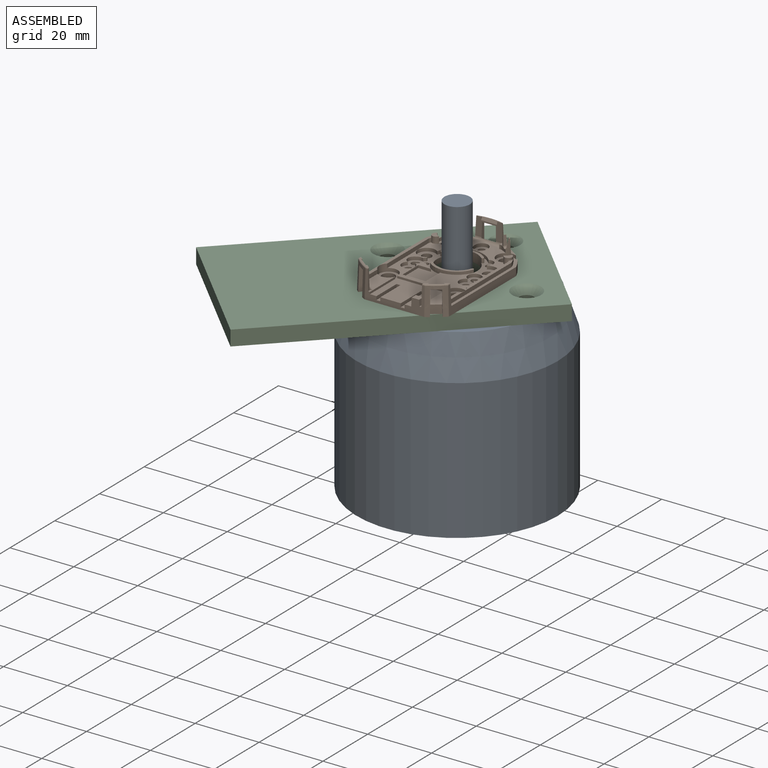
[diagram: assembled view]
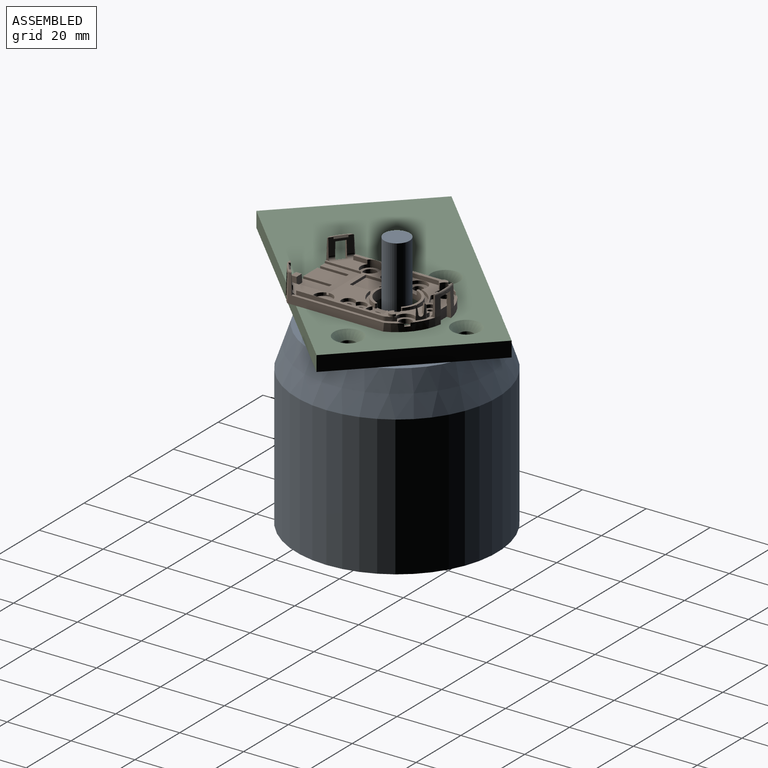
[diagram: assembled view, second angle]
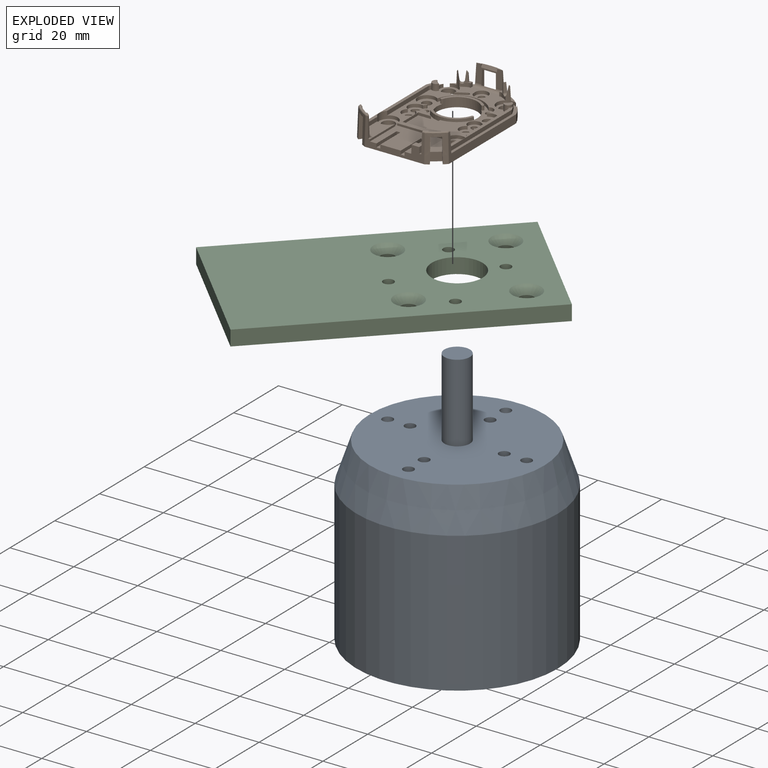
[diagram: exploded view]
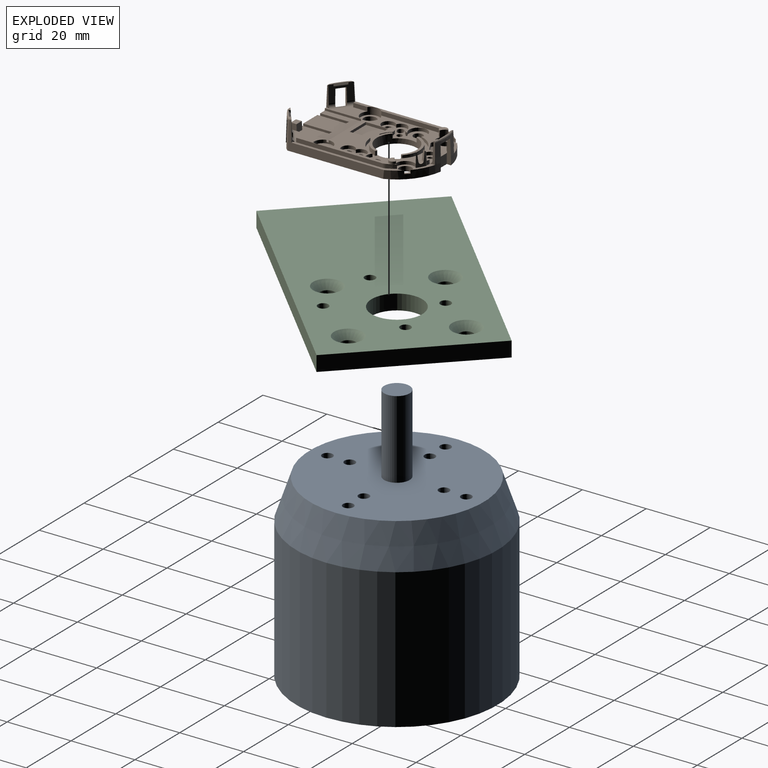
[diagram: exploded view, second angle]
ASSEMBLY  parts=3 mates=2
PART A: 33 faces, bbox 63x63x90 mm
  f0: plane 18x18mm, normal (0,0,-1), area 254.5mm2, adj f1
  f1: cylinder r=9mm len=18mm, axis (0,0,-1), area 113.1mm2, adj f0,f2
  f2: plane 30.5x30.5mm, normal (0,0,-1), area 456.5mm2, adj f1,f3,f25,f27,f29,f31
  f3: cone r=15.25mm half-angle=66.1deg, axis (0,0,1), area 2610.4mm2, adj f2,f4
  f4: cylinder r=31.5mm len=63mm, axis (0,0,-1), area 8668.9mm2, adj f3,f5
  f5: cone r=27.25mm half-angle=18.8deg, axis (0,0,-1), area 2436.8mm2, adj f4,f6
  f6: plane 54.5x54.5mm, normal (0,0,1), area 2214.1mm2, adj f5,f7,f9,f11,f13,f15,f17,f19
  f7: cylinder r=4mm len=24.5mm, axis (0,0,-1), area 615.8mm2, adj f6,f8
  f8: plane 8x8mm, normal (0,0,1), area 50.3mm2, adj f7
  f9: cylinder r=1.65mm len=14.1mm, axis (0,0,1), area 146.2mm2, adj f6,f10
  f10: cone r=0mm half-angle=59deg, axis (0,0,1), area 10mm2, adj f9
  f11: cylinder r=1.65mm len=14.1mm, axis (0,0,1), area 146.2mm2, adj f6,f12
  f12: cone r=0mm half-angle=59deg, axis (0,0,1), area 10mm2, adj f11
  f13: cylinder r=1.65mm len=14.1mm, axis (0,0,1), area 146.2mm2, adj f6,f14
  f14: cone r=0mm half-angle=59deg, axis (0,0,1), area 10mm2, adj f13
  f15: cylinder r=1.65mm len=14.1mm, axis (0,0,1), area 146.2mm2, adj f6,f16
  f16: cone r=0mm half-angle=59deg, axis (0,0,1), area 10mm2, adj f15
  f17: cylinder r=1.65mm len=14.1mm, axis (0,0,1), area 146.2mm2, adj f6,f18
  f18: cone r=0mm half-angle=59deg, axis (0,0,1), area 10mm2, adj f17
  f19: cylinder r=1.65mm len=14.1mm, axis (0,0,1), area 146.2mm2, adj f6,f20
  f20: cone r=0mm half-angle=59deg, axis (0,0,1), area 10mm2, adj f19
  f21: cylinder r=1.65mm len=14.1mm, axis (0,0,1), area 146.2mm2, adj f6,f22
  f22: cone r=0mm half-angle=59deg, axis (0,0,1), area 10mm2, adj f21
  f23: cylinder r=1.65mm len=14.1mm, axis (0,0,1), area 146.2mm2, adj f6,f24
  f24: cone r=0mm half-angle=59deg, axis (0,0,1), area 10mm2, adj f23
  f25: cylinder r=1.25mm len=13.5mm, axis (0,0,-1), area 106mm2, adj f2,f26
  f26: cone r=0mm half-angle=59deg, axis (0,0,-1), area 5.7mm2, adj f25
  f27: cylinder r=1.25mm len=13.5mm, axis (0,0,-1), area 106mm2, adj f2,f28
  f28: cone r=0mm half-angle=59deg, axis (0,0,-1), area 5.7mm2, adj f27
  f29: cylinder r=1.25mm len=13.5mm, axis (0,0,-1), area 106mm2, adj f2,f30
  f30: cone r=0mm half-angle=59deg, axis (0,0,-1), area 5.7mm2, adj f29
  f31: cylinder r=1.25mm len=13.5mm, axis (0,0,-1), area 106mm2, adj f2,f32
  f32: cone r=0mm half-angle=59deg, axis (0,0,-1), area 5.7mm2, adj f31
PART B: 245 faces, bbox 28.9x44.7x9.1 mm
  f0: plane 30.9x24.8mm, normal (0,0,-1), area 240.8mm2, adj f9,f14,f16,f20,f22,f23,f24,f25
  f1: plane 38.33x6.58mm, normal (0,0,-1), area 61.6mm2, adj f13,f62,f65,f70,f76,f77,f85,f96
  f2: cylinder r=7.1mm len=11.5mm, axis (0,0,1), area 5.3mm2, adj f6,f7,f220,f235
  f3: cylinder r=7.1mm len=11.5mm, axis (0,0,1), area 5.3mm2, adj f5,f8,f225,f234
  f4: cylinder r=6.3mm len=12.6mm, axis (0,0,-1), area 93.7mm2, adj f5,f6,f7,f8,f80,f163,f234,f235
  f5: cylinder r=0.4mm len=1.38mm, axis (0,0,-1), area 1.1mm2, adj f3,f4,f163,f229,f230,f234
  f6: cylinder r=0.4mm len=1.38mm, axis (0,0,-1), area 1.1mm2, adj f2,f4,f163,f228,f231,f235
  f7: cylinder r=0.4mm len=1.38mm, axis (0,0,-1), area 1.1mm2, adj f2,f4,f163,f226,f232,f235
  f8: cylinder r=0.4mm len=1.38mm, axis (0,0,-1), area 1.1mm2, adj f3,f4,f163,f227,f233,f234
  f9: cylinder r=1.6mm len=1mm, axis (0,0,-1), area 1mm2, adj f0,f20,f163,f223
  f10: plane 15.44x11.98mm, normal (0,0,-1), area 158.3mm2, adj f76,f77,f78,f79,f87,f88,f89,f91
  f11: plane 38.33x6.58mm, normal (0,0,-1), area 61.6mm2, adj f15,f46,f63,f66,f71,f76,f78,f83
  f12: plane 30.61x1.74mm, normal (0,0,-1), area 25.9mm2, adj f13,f14,f43,f96,f97,f104,f105,f106
  f13: cylinder r=14.4mm len=2.61mm, axis (0,0,-1), area 3.7mm2, adj f1,f12,f97,f215,f238
  f14: cylinder r=13.4mm len=1.27mm, axis (0,0,-1), area 0.6mm2, adj f0,f12,f104,f214
  f15: cylinder r=14.4mm len=2.61mm, axis (0,0,-1), area 3.7mm2, adj f11,f17,f94,f212,f237
  f16: cylinder r=13.4mm len=1.27mm, axis (0,0,-1), area 0.6mm2, adj f0,f17,f101,f211
  f17: plane 30.61x1.74mm, normal (0,0,-1), area 25.9mm2, adj f15,f16,f46,f94,f95,f98,f99,f100
  f18: cylinder r=0.85mm len=1.7mm, axis (0,0,-1), area 8mm2, adj f80,f163
  f19: cylinder r=0.85mm len=1.7mm, axis (0,0,-1), area 8mm2, adj f80,f163
  f20: cylinder r=2.02mm len=1.92mm, axis (0,0,-1), area 2mm2, adj f0,f9,f163,f172
  f21: plane 1.59x1.45mm, normal (0,0,-1), area 0.9mm2, adj f22,f25,f27,f31,f72,f74,f103,f119
  f22: cylinder r=13.4mm len=1.95mm, axis (0,0,-1), area 2.1mm2, adj f0,f21,f103,f189,f190,f205,f238
  f23: cone r=14.66mm half-angle=3deg, axis (0,0,1), area 5.1mm2, adj f0,f24,f25,f203,f204,f205,f206,f207
  f24: plane 4.15x0.19mm, normal (-0.63,0.78,-0.05), area 0.1mm2, adj f0,f23,f26,f207
  f25: cone r=0.64mm half-angle=3deg, axis (0,0,1), area 4.8mm2, adj f0,f21,f23,f27,f31,f203
  f26: cone r=0.64mm half-angle=3deg, axis (0,0,1), area 0.6mm2, adj f0,f24,f207,f238
  f27: cone r=13.39mm half-angle=3deg, axis (0,0,-1), area 0.9mm2, adj f21,f25,f203,f204,f205
  f28: plane 1.59x1.45mm, normal (0,0,-1), area 0.9mm2, adj f29,f30,f73,f75,f102,f120,f194,f195
  f29: cylinder r=2mm len=1.27mm, axis (0,0,-1), area 0.9mm2, adj f0,f28,f73,f195
  f30: cylinder r=13.4mm len=1.95mm, axis (0,0,-1), area 2.1mm2, adj f0,f28,f102,f191,f192,f198,f236
  f31: cylinder r=2mm len=1.27mm, axis (0,0,-1), area 0.9mm2, adj f0,f21,f25,f72
  f32: sphere r=0.4mm, area 0.1mm2, adj f33,f34,f51
  f33: cylinder r=0.4mm len=8.62mm, axis (-0.03,-0.01,1), area 2.6mm2, adj f32,f80,f81,f85,f108,f109
  f34: cylinder r=0.4mm len=0.74mm, axis (0,-1,0), area 0.4mm2, adj f32,f85,f110,f111,f127
  f35: plane 0.45x0.01mm, normal (0.8,-0.6,0), area 0mm2, adj f69,f110,f122
  f36: plane 0.45x0.01mm, normal (0.8,0.6,0), area 0mm2, adj f57,f117,f123
  f37: plane 0.45x0.01mm, normal (-0.8,0.6,0), area 0mm2, adj f59,f110,f122
  f38: cylinder r=1.05mm len=2.1mm, axis (0,0,-1), area 9.9mm2, adj f80,f163
  f39: cylinder r=1.05mm len=2.1mm, axis (0,0,-1), area 9.9mm2, adj f80,f166
  f40: cylinder r=1mm len=1.97mm, axis (0,0,-1), area 5.5mm2, adj f41,f80,f163
  f41: cylinder r=1mm len=1.98mm, axis (0,0,-1), area 5.6mm2, adj f40,f80,f163
  f42: cylinder r=1.47mm len=2.95mm, axis (0,0,-1), area 13.9mm2, adj f80,f163
  f43: plane 18.46x1.27mm, normal (1,0,0), area 23.4mm2, adj f0,f12,f104,f239
  f44: cylinder r=1mm len=1.97mm, axis (0,0,-1), area 5.5mm2, adj f45,f80,f166
  f45: cylinder r=1mm len=1.98mm, axis (0,0,-1), area 5.6mm2, adj f44,f80,f166
  f46: plane 4.43x1.27mm, normal (-1,0,0), area 5.6mm2, adj f11,f17,f99,f240
  f47: cylinder r=1.47mm len=2.95mm, axis (0,0,-1), area 13.9mm2, adj f80,f163
  f48: cylinder r=1mm len=2mm, axis (0,0,-1), area 5.5mm2, adj f49,f80,f160
  f49: cylinder r=1mm len=2.01mm, axis (0,0,-1), area 5.6mm2, adj f48,f80,f160
  f50: sphere r=0.4mm, area 0.1mm2, adj f51,f52,f152
  f51: torus R=18.04mm, axis (0,0,1), area 3.5mm2, adj f32,f50,f53,f54,f109,f111,f143,f144
  f52: cylinder r=0.4mm len=8.61mm, axis (0.01,0.03,-1), area 1.6mm2, adj f50,f60,f61,f76,f80,f109
  f53: plane 1.4x0.83mm, normal (0,0,-1), area 0.5mm2, adj f51,f110,f144,f152
  f54: plane 2.15x1.62mm, normal (0,0,-1), area 0.1mm2, adj f51,f143
  f55: plane 1.34x0.29mm, normal (0,0,-1), area 0.2mm2, adj f113,f134,f149
  f56: plane 2.59x0.06mm, normal (0,0,-1), area 0.1mm2, adj f132,f149
  f57: plane 1.4x1.06mm, normal (-0.6,0.8,0), area 0.5mm2, adj f36,f117,f123,f140
  f58: cone r=19.87mm half-angle=2deg, axis (0,0,1), area 3.4mm2, adj f80,f116,f140,f153
  f59: plane 1.4x1.06mm, normal (0.6,0.8,0), area 0.5mm2, adj f37,f110,f122,f136
  f60: cone r=19.87mm half-angle=2deg, axis (0,0,1), area 3.4mm2, adj f52,f61,f80,f136
  f61: plane 1.19x0.69mm, normal (0,0,1), area 0mm2, adj f52,f60,f109,f136
  f62: cylinder r=15.5mm len=12.14mm, axis (0,0,-1), area 38.5mm2, adj f0,f1,f80,f84,f85,f129,f184,f238
  f63: cylinder r=15.5mm len=12.14mm, axis (0,0,-1), area 38.5mm2, adj f0,f11,f80,f83,f84,f131,f183,f236
  f64: plane 2.01x0.27mm, normal (0,-1,0), area 0.5mm2, adj f113,f114,f121,f129
  f65: plane 0.82x0.79mm, normal (0.8,-0.6,0), area 0.2mm2, adj f1,f110,f122
  f66: plane 0.63x0.48mm, normal (0.8,0.6,0), area 0.1mm2, adj f11,f123,f124
  f67: plane 2.01x0.27mm, normal (0,-1,0), area 0.5mm2, adj f112,f113,f121,f131
  f68: plane 1.58x1.2mm, normal (-0.6,0.8,0), area 0.5mm2, adj f117,f123,f124,f141
  f69: plane 1.4x1.06mm, normal (0.6,0.8,0), area 0.5mm2, adj f35,f110,f122,f138
  f70: plane 0.63x0.48mm, normal (-0.8,0.6,0), area 0.1mm2, adj f1,f122,f127
  f71: plane 0.82x0.79mm, normal (-0.8,-0.6,0), area 0.2mm2, adj f11,f117,f123
  f72: plane 1.27x0.38mm, normal (0,1,0), area 0.5mm2, adj f0,f21,f31,f119
  f73: plane 1.27x0.38mm, normal (0,1,0), area 0.5mm2, adj f0,f28,f29,f120
  f74: plane 1.27x0.38mm, normal (0,-1,0), area 0.5mm2, adj f0,f21,f103,f119
  f75: plane 1.27x0.38mm, normal (0,-1,0), area 0.5mm2, adj f0,f28,f102,f120
  f76: plane 18.52x8.61mm, normal (0,-1,-0.03), area 49.8mm2, adj f1,f10,f11,f52,f77,f78,f80,f86
  f77: plane 11.35x0.64mm, normal (1,0,0), area 7.3mm2, adj f1,f10,f76,f216,f239
  f78: plane 11.35x0.64mm, normal (-1,0,0), area 7.3mm2, adj f10,f11,f76,f240
  f79: plane 15.19x0.64mm, normal (0,-1,0), area 9.7mm2, adj f0,f10,f239,f240
  f80: plane 43.38x28.78mm, normal (0,0,1), area 927.7mm2, adj f4,f18,f19,f33,f38,f39,f40,f41
  f81: cone r=19.87mm half-angle=2deg, axis (0,0,1), area 3.7mm2, adj f33,f80,f108,f138
  f82: cone r=19.87mm half-angle=2deg, axis (0,0,1), area 3.6mm2, adj f80,f116,f141,f159
  f83: plane 30.07x8.62mm, normal (1,0,-0.03), area 80.3mm2, adj f11,f63,f80,f124,f150,f158,f159
  f84: cone r=15.5mm half-angle=2deg, axis (0,0,1), area 27.8mm2, adj f62,f63,f112,f114,f128,f129,f131,f149
  f85: plane 30.07x8.62mm, normal (-1,0,-0.03), area 80.4mm2, adj f1,f33,f34,f62,f80,f127
  f86: plane 9.02x1.2mm, normal (0,0,-1), area 10.8mm2, adj f76,f87,f88,f89
  f87: plane 9.02x1.1mm, normal (1,0,0), area 9.9mm2, adj f10,f76,f86,f89
  f88: plane 9.02x1.1mm, normal (-1,0,0), area 9.9mm2, adj f10,f76,f86,f89
  f89: plane 1.2x1.1mm, normal (0,-1,0), area 1.3mm2, adj f10,f86,f87,f88
  f90: plane 9.02x1.2mm, normal (0,0,-1), area 10.8mm2, adj f76,f91,f92,f93
  f91: plane 9.02x1.1mm, normal (1,0,0), area 9.9mm2, adj f10,f76,f90,f93
  f92: plane 9.02x1.1mm, normal (-1,0,0), area 9.9mm2, adj f10,f76,f90,f93
  f93: plane 1.2x1.1mm, normal (0,-1,0), area 1.3mm2, adj f10,f90,f91,f92
  f94: cylinder r=2mm len=1.27mm, axis (0,0,-1), area 1mm2, adj f11,f15,f17,f95
  f95: plane 27.04x1.27mm, normal (1,0,0), area 34.3mm2, adj f11,f17,f94,f98
  f96: plane 27.04x1.27mm, normal (-1,0,0), area 34.3mm2, adj f1,f12,f97,f107
  f97: cylinder r=2mm len=1.27mm, axis (0,0,-1), area 1mm2, adj f1,f12,f13,f96
  f98: plane 1.27x0.23mm, normal (0.62,-0.78,0), area 0.4mm2, adj f11,f17,f95,f99
  f99: plane 1.27x0.77mm, normal (0,-1,0), area 1mm2, adj f11,f17,f46,f98
  f100: plane 18.46x1.27mm, normal (-1,0,0), area 23.4mm2, adj f0,f17,f101,f240
  f101: cylinder r=1mm len=1.27mm, axis (0,0,-1), area 0.5mm2, adj f0,f16,f17,f100
  f102: cylinder r=1mm len=1.27mm, axis (0,0,-1), area 0.5mm2, adj f0,f28,f30,f75
  f103: cylinder r=1mm len=1.27mm, axis (0,0,-1), area 0.5mm2, adj f0,f21,f22,f74
  f104: cylinder r=1mm len=1.27mm, axis (0,0,-1), area 0.5mm2, adj f0,f12,f14,f43
  f105: plane 4.43x1.27mm, normal (1,0,0), area 5.6mm2, adj f1,f12,f106,f239
  f106: plane 1.27x0.77mm, normal (0,-1,0), area 1mm2, adj f1,f12,f105,f107
  f107: plane 1.27x0.23mm, normal (-0.62,-0.78,0), area 0.4mm2, adj f1,f12,f96,f106
  f108: plane 1.06x1.02mm, normal (0,0,1), area 0mm2, adj f33,f81,f109,f138
  f109: cone r=18.65mm half-angle=2deg, axis (0,0,1), area 19.9mm2, adj f33,f51,f52,f61,f108,f135,f136,f138
  f110: plane 6.51x5.62mm, normal (0.6,0.8,-0.03), area 20.1mm2, adj f1,f34,f35,f37,f53,f59,f65,f69
  f111: plane 1.09x0.88mm, normal (0,0,-1), area 0.4mm2, adj f34,f51,f110,f145
  f112: plane 6.53x1.83mm, normal (1,0,-0.04), area 4.4mm2, adj f0,f67,f84,f113,f121,f149
  f113: plane 8.46x5.23mm, normal (0,-1,-0.03), area 21.5mm2, adj f55,f64,f67,f112,f114,f115,f128,f129
  f114: plane 6.53x1.83mm, normal (-1,0,-0.04), area 4.4mm2, adj f0,f64,f84,f113,f121,f149
  f115: plane 1.34x0.29mm, normal (0,0,-1), area 0.2mm2, adj f113,f133,f149
  f116: cone r=19.88mm half-angle=2deg, axis (0,0,1), area 19.9mm2, adj f58,f82,f139,f140,f141,f154,f156,f158
  f117: plane 6.51x5.62mm, normal (-0.6,0.8,-0.03), area 21.7mm2, adj f11,f36,f57,f68,f71,f118,f124,f125
  f118: plane 5.16x3.91mm, normal (0,0,-1), area 2mm2, adj f117,f146,f147,f148,f150,f151,f156
  f119: plane 1.27x1mm, normal (1,0,0), area 1.3mm2, adj f0,f21,f72,f74
  f120: plane 1.27x1mm, normal (-1,0,0), area 1.3mm2, adj f0,f28,f73,f75
  f121: cylinder r=1mm len=8.57mm, axis (-1,0,0), area 11.8mm2, adj f0,f64,f67,f112,f114,f129,f130,f131
  f122: cylinder r=1mm len=5.91mm, axis (0.8,-0.6,0), area 7.5mm2, adj f1,f35,f37,f59,f65,f69,f70,f136
  f123: cylinder r=1mm len=6.1mm, axis (0.8,0.6,0), area 7.6mm2, adj f11,f36,f57,f66,f68,f71,f124,f140
  f124: plane 6.54x0.86mm, normal (0,1,-0.03), area 1.9mm2, adj f11,f66,f68,f83,f117,f123,f150
  f125: plane 6.5x0.76mm, normal (-1,0,-0.02), area 3.5mm2, adj f11,f76,f117,f151
  f126: plane 6.5x0.76mm, normal (1,0,-0.02), area 3.5mm2, adj f1,f76,f110,f152
  f127: plane 6.51x0.83mm, normal (0,1,-0.03), area 1.9mm2, adj f1,f34,f70,f85,f110,f187
  f128: plane 4.32x1.08mm, normal (0,0,1), area 4.5mm2, adj f84,f113,f129,f131
  f129: plane 7.65x1.35mm, normal (1,0,0.02), area 9mm2, adj f62,f64,f80,f84,f113,f121,f128,f130
  f130: plane 4.59x3.15mm, normal (0,1,0.02), area 14.3mm2, adj f80,f121,f129,f131
  f131: plane 7.65x1.35mm, normal (-1,0,0.02), area 9mm2, adj f63,f67,f80,f84,f113,f121,f128,f130
  f132: plane 5.02x0.93mm, normal (0,-0.88,-0.47), area 5.1mm2, adj f56,f113,f133,f134,f149
  f133: plane 0.91x0.47mm, normal (-1,0,0), area 0.2mm2, adj f113,f115,f132,f149
  f134: plane 0.91x0.47mm, normal (1,0,0), area 0.2mm2, adj f55,f113,f132,f149
  f135: plane 3.05x2.65mm, normal (0,0,1), area 3.3mm2, adj f109,f110,f136,f138
  f136: plane 7.65x1.49mm, normal (-0.8,0.6,0.02), area 10.9mm2, adj f59,f60,f61,f80,f109,f110,f122,f135
  f137: plane 2.71x2.62mm, normal (-0.6,-0.8,0.02), area 8.8mm2, adj f80,f122,f136,f138
  f138: plane 7.65x1.5mm, normal (0.8,-0.6,0.02), area 11mm2, adj f69,f80,f81,f108,f109,f110,f122,f135
  f139: plane 3.04x2.64mm, normal (0,0,1), area 3.3mm2, adj f116,f117,f140,f141
  f140: plane 7.65x1.49mm, normal (0.8,0.6,0.02), area 10.9mm2, adj f57,f58,f80,f116,f117,f123,f139,f142
  f141: plane 7.65x1.5mm, normal (-0.8,-0.6,0.02), area 11mm2, adj f68,f80,f82,f116,f117,f123,f139,f142
  f142: plane 2.71x2.62mm, normal (0.6,-0.8,0.02), area 8.8mm2, adj f80,f123,f140,f141
  f143: plane 3.57x2.91mm, normal (0.52,0.69,-0.5), area 4.9mm2, adj f51,f54,f110,f144,f145
  f144: plane 1.07x0.49mm, normal (-0.8,0.6,0), area 0.3mm2, adj f51,f53,f110,f143
  f145: plane 1.07x0.49mm, normal (0.8,-0.6,0), area 0.3mm2, adj f51,f110,f111,f143
  f146: plane 3.39x2.68mm, normal (-0.54,0.71,-0.46), area 2.9mm2, adj f117,f118,f147,f148
  f147: plane 0.64x0.27mm, normal (-0.8,-0.6,0), area 0.1mm2, adj f117,f118,f146
  f148: plane 0.64x0.27mm, normal (0.8,0.6,0), area 0.1mm2, adj f117,f118,f146
  f149: torus R=14.79mm, axis (0,0,-1), area 6mm2, adj f55,f56,f84,f112,f113,f114,f115,f132
  f150: cylinder r=0.4mm len=0.74mm, axis (0,-1,0), area 0.4mm2, adj f83,f117,f118,f124,f157
  f151: cylinder r=0.4mm len=0.74mm, axis (-1,0,0), area 0.4mm2, adj f76,f117,f118,f125,f155
  f152: cylinder r=0.4mm len=0.74mm, axis (1,0,0), area 0.5mm2, adj f50,f53,f76,f110,f126
  f153: cylinder r=0.4mm len=2.5mm, axis (0.01,-0.03,1), area 0.5mm2, adj f58,f76,f80,f154
  f154: cylinder r=0.4mm len=6.11mm, axis (-0.01,0.03,-1), area 1.2mm2, adj f76,f116,f153,f155
  f155: sphere r=0.4mm, area 0.1mm2, adj f151,f154,f156
  f156: torus R=19.27mm, axis (0,0,-1), area 3.5mm2, adj f116,f118,f155,f157
  f157: sphere r=0.4mm, area 0.1mm2, adj f150,f156,f158
  f158: cylinder r=0.4mm len=6.12mm, axis (-0.03,0.01,-1), area 1.9mm2, adj f83,f116,f157,f159
  f159: cylinder r=0.4mm len=2.5mm, axis (0.03,-0.01,1), area 0.8mm2, adj f80,f82,f83,f158
  f160: plane 4.6x4.05mm, normal (0,0,-1), area 10.9mm2, adj f48,f49,f161,f162
  f161: cylinder r=2.02mm len=4.05mm, axis (0,0,-1), area 6.9mm2, adj f0,f160,f162
  f162: cylinder r=2.02mm len=4.05mm, axis (0,0,-1), area 6.9mm2, adj f0,f160,f161
  f163: plane 24.65x19.12mm, normal (0,0,-1), area 106.2mm2, adj f4,f5,f6,f7,f8,f9,f18,f19
  f164: cylinder r=2.8mm len=5.6mm, axis (0,0,-1), area 12.5mm2, adj f0,f163,f222,f224
  f165: plane 5.79x5.79mm, normal (0,0,-1), area 14mm2, adj f240,f244
  f166: plane 7.83x4.62mm, normal (0,0,-1), area 19.8mm2, adj f39,f44,f45,f167,f168,f185
  f167: cylinder r=2.02mm len=3.87mm, axis (0,0,-1), area 6.8mm2, adj f0,f166,f168,f185
  f168: cylinder r=2.02mm len=3.76mm, axis (0,0,-1), area 4.8mm2, adj f0,f166,f167,f185
  f169: plane 5.79x5.79mm, normal (0,0,-1), area 14mm2, adj f239,f243
  f170: cylinder r=2.8mm len=5.6mm, axis (0,0,-1), area 12.5mm2, adj f0,f163,f221,f223
  f171: cylinder r=2.02mm len=1.48mm, axis (0,0,-1), area 2mm2, adj f0,f163,f186,f208
  f172: cylinder r=2.02mm len=3.76mm, axis (0,0,-1), area 4.8mm2, adj f0,f20,f163,f186
  f173: plane 7.2x0.8mm, normal (0,1,0), area 5.8mm2, adj f0,f174,f176,f177
  f174: plane 7.01x0.8mm, normal (-1,0,0), area 5.6mm2, adj f0,f173,f175,f177
  f175: plane 4.01x0.8mm, normal (0,-1,0), area 3.2mm2, adj f0,f174,f177,f224
  f176: plane 6.48x0.8mm, normal (1,0,0), area 5.2mm2, adj f0,f173,f177,f224
  f177: plane 7.2x7.01mm, normal (0,0,-1), area 49.3mm2, adj f173,f174,f175,f176,f224
  f178: cylinder r=0.7mm len=1.31mm, axis (0,0,-1), area 2.6mm2, adj f0,f179,f181,f182
  f179: plane 3.13x1.82mm, normal (0.5,0.86,0), area 4.3mm2, adj f0,f178,f180,f182
  f180: cylinder r=0.7mm len=1.31mm, axis (0,0,-1), area 1.8mm2, adj f0,f179,f181,f182,f183,f237
  f181: plane 3.13x1.82mm, normal (-0.5,-0.86,0), area 4.1mm2, adj f0,f178,f180,f182,f183,f236
  f182: plane 4.53x3.22mm, normal (0,0,-1), area 6.6mm2, adj f178,f179,f180,f181
  f183: plane 5.79x5.79mm, normal (0,0,-1), area 13.8mm2, adj f63,f180,f181,f236,f237,f241
  f184: plane 5.79x5.79mm, normal (0,0,-1), area 13.9mm2, adj f62,f238,f242
  f185: cylinder r=2.05mm len=4.1mm, axis (0,0,-1), area 10.7mm2, adj f0,f166,f167,f168
  f186: cylinder r=2.05mm len=4.1mm, axis (0,0,-1), area 10.7mm2, adj f0,f163,f171,f172
  f187: cylinder r=0.5mm len=0.37mm, axis (0.8,-0.6,0), area 0mm2, adj f110,f127,f188
  f188: plane 0.43x0.15mm, normal (-0.8,0.6,0), area 0mm2, adj f110,f122,f187
  f189: cone r=13.39mm half-angle=3deg, axis (0,0,-1), area 0.2mm2, adj f0,f22,f190,f238
  f190: cone r=0.64mm half-angle=3deg, axis (0,0,1), area 0mm2, adj f0,f22,f189
  f191: cone r=0.64mm half-angle=3deg, axis (0,0,1), area 0mm2, adj f0,f30,f192
  f192: cone r=13.39mm half-angle=3deg, axis (0,0,-1), area 0.2mm2, adj f0,f30,f191,f236
  f193: cone r=0.64mm half-angle=3deg, axis (0,0,1), area 0.6mm2, adj f0,f197,f199,f236
  f194: cone r=13.39mm half-angle=3deg, axis (0,0,-1), area 0.9mm2, adj f28,f195,f198,f201,f202
  f195: cone r=0.64mm half-angle=3deg, axis (0,0,1), area 4.8mm2, adj f0,f28,f29,f194,f196,f202
  f196: cone r=14.66mm half-angle=3deg, axis (0,0,1), area 5.1mm2, adj f0,f195,f197,f198,f199,f200,f201,f202
  f197: plane 4.15x0.19mm, normal (0.63,0.78,-0.05), area 0.1mm2, adj f0,f193,f196,f199
  f198: cylinder r=0.76mm len=1.92mm, axis (0.5,0.87,0), area 2.6mm2, adj f28,f30,f194,f196,f200,f201,f236
  f199: plane 0.36x0.26mm, normal (0.61,-0.35,-0.71), area 0.1mm2, adj f193,f196,f197,f200,f236
  f200: plane 2.8x0.85mm, normal (-0.86,0.49,-0.12), area 1.7mm2, adj f196,f198,f199,f236
  f201: plane 2.8x1mm, normal (0.86,-0.49,-0.12), area 2.7mm2, adj f194,f196,f198,f202
  f202: plane 0.86x0.79mm, normal (-0.61,0.35,-0.71), area 0.6mm2, adj f194,f195,f196,f201
  f203: plane 0.86x0.79mm, normal (0.61,0.35,-0.71), area 0.6mm2, adj f23,f25,f27,f204
  f204: plane 2.8x1mm, normal (-0.86,-0.49,-0.12), area 2.7mm2, adj f23,f27,f203,f205
  f205: cylinder r=0.76mm len=1.92mm, axis (-0.5,0.87,0), area 2.6mm2, adj f21,f22,f23,f27,f204,f206,f238
  f206: plane 2.8x0.85mm, normal (0.86,0.49,-0.12), area 1.7mm2, adj f23,f205,f207,f238
  f207: plane 0.36x0.26mm, normal (-0.61,-0.35,-0.71), area 0mm2, adj f23,f24,f26,f206,f238
  f208: cylinder r=1.6mm len=1mm, axis (0,0,-1), area 1mm2, adj f0,f163,f171,f224
  f209: cylinder r=1.6mm len=3.02mm, axis (0,0,-1), area 5.2mm2, adj f0,f163,f221,f222
  f210: plane 2.42x2.41mm, normal (0,0,-1), area 3.4mm2, adj f211,f237
  f211: cone r=1.27mm half-angle=1deg, axis (0,0,1), area 6.8mm2, adj f0,f16,f17,f210,f237
  f212: cone r=1.27mm half-angle=1deg, axis (0,0,1), area 0.1mm2, adj f11,f15
  f213: plane 2.42x2.41mm, normal (0,0,-1), area 3.4mm2, adj f214,f238
  f214: cone r=1.27mm half-angle=1deg, axis (0,0,1), area 6.8mm2, adj f0,f12,f14,f213,f238
  f215: cone r=1.27mm half-angle=1deg, axis (0,0,1), area 0.1mm2, adj f1,f13
  f216: plane 2.5x2mm, normal (-1,0,-0.03), area 4.8mm2, adj f76,f77,f217,f219
  f217: plane 2.52x2.5mm, normal (0,1,-0.03), area 6.1mm2, adj f10,f216,f218,f219
  f218: plane 2.5x2mm, normal (1,0,-0.03), area 4.8mm2, adj f10,f76,f217,f219
  f219: plane 2.35x1.83mm, normal (0,0,-1), area 4.3mm2, adj f76,f216,f217,f218
  f220: cone r=7.1mm half-angle=1deg, axis (0,0,1), area 14mm2, adj f2,f163,f231,f232
  f221: cone r=8.1mm half-angle=1deg, axis (0,0,-1), area 17.4mm2, adj f0,f163,f170,f209
  f222: cone r=8.1mm half-angle=1deg, axis (0,0,-1), area 0.4mm2, adj f0,f163,f164,f209
  f223: cone r=8.1mm half-angle=1deg, axis (0,0,-1), area 0.4mm2, adj f0,f9,f163,f170
  f224: cone r=8.1mm half-angle=1deg, axis (0,0,-1), area 14.7mm2, adj f0,f163,f164,f175,f176,f177,f208
  f225: cone r=7.1mm half-angle=1deg, axis (0,0,1), area 14mm2, adj f3,f163,f230,f233
  f226: plane 1x0.02mm, normal (0.28,-0.96,0), area 0mm2, adj f7,f163,f232
  f227: plane 1x0.01mm, normal (0.69,0.72,0), area 0mm2, adj f8,f163,f233
  f228: plane 1x0.01mm, normal (-0.69,-0.72,0), area 0mm2, adj f6,f163,f231
  f229: plane 1x0.02mm, normal (-0.28,0.96,0), area 0mm2, adj f5,f163,f230
  f230: cylinder r=0.4mm len=1.01mm, axis (-0.02,0,1), area 0.7mm2, adj f5,f163,f225,f229
  f231: cylinder r=0.4mm len=1.01mm, axis (0.01,-0.01,-1), area 0.7mm2, adj f6,f163,f220,f228
  f232: cylinder r=0.4mm len=1.01mm, axis (0.02,0,1), area 0.7mm2, adj f7,f163,f220,f226
  f233: cylinder r=0.4mm len=1.01mm, axis (-0.01,0.01,-1), area 0.7mm2, adj f8,f163,f225,f227
  f234: plane 11.65x5.27mm, normal (0,0,-1), area 11.1mm2, adj f3,f4,f5,f8
  f235: plane 11.65x5.27mm, normal (0,0,-1), area 11.1mm2, adj f2,f4,f6,f7
  f236: cylinder r=2.9mm len=5.3mm, axis (0,0,-1), area 11.4mm2, adj f0,f30,f63,f181,f183,f192,f193,f198
  f237: cylinder r=2.9mm len=5mm, axis (0,0,-1), area 13.4mm2, adj f0,f11,f15,f17,f63,f180,f183,f210
  f238: cylinder r=2.9mm len=5.79mm, axis (0,0,-1), area 25.7mm2, adj f0,f1,f12,f13,f22,f26,f62,f184
  f239: cylinder r=2.9mm len=5.79mm, axis (0,0,-1), area 24mm2, adj f0,f1,f10,f12,f43,f77,f79,f105
  f240: cylinder r=2.9mm len=5.79mm, axis (0,0,-1), area 24mm2, adj f0,f10,f11,f17,f46,f78,f79,f100
  f241: cylinder r=1.98mm len=3.96mm, axis (0,0,-1), area 18.7mm2, adj f80,f183
  f242: cylinder r=1.98mm len=3.96mm, axis (0,0,-1), area 18.7mm2, adj f80,f184
  f243: cylinder r=1.98mm len=3.96mm, axis (0,0,-1), area 18.7mm2, adj f80,f169
  f244: cylinder r=1.98mm len=3.96mm, axis (0,0,-1), area 18.7mm2, adj f80,f165
PART C: 19 faces, bbox 98.8x98.8x4.8 mm
  f0: plane 35.92x35.92mm, normal (0.71,0.71,0), area 241.9mm2, adj f1,f3,f5,f6
  f1: plane 62.86x62.86mm, normal (-0.71,0.71,0), area 423.4mm2, adj f0,f2,f5,f6
  f2: plane 35.92x35.92mm, normal (-0.71,-0.71,0), area 241.9mm2, adj f1,f3,f5,f6
  f3: plane 62.86x62.86mm, normal (0.71,-0.71,0), area 423.4mm2, adj f0,f2,f5,f6
  f4: cylinder r=7.94mm len=15.88mm, axis (0,0,-1), area 237.5mm2, adj f5,f6
  f5: plane 98.78x98.78mm, normal (0,0,1), area 4031.8mm2, adj f0,f1,f2,f3,f4,f8,f10,f12
  f6: plane 98.78x98.78mm, normal (0,0,-1), area 4220.4mm2, adj f0,f1,f2,f3,f4,f7,f9,f11
  f7: cylinder r=2.25mm len=4.5mm, axis (0,0,1), area 35.8mm2, adj f6,f8
  f8: cone r=2.25mm half-angle=45deg, axis (0,0,1), area 66.7mm2, adj f5,f7
  f9: cylinder r=2.25mm len=4.5mm, axis (0,0,1), area 35.8mm2, adj f6,f10
  f10: cone r=2.25mm half-angle=45deg, axis (0,0,1), area 66.7mm2, adj f5,f9
  f11: cylinder r=2.25mm len=4.5mm, axis (0,0,1), area 35.8mm2, adj f6,f12
  f12: cone r=2.25mm half-angle=45deg, axis (0,0,1), area 66.7mm2, adj f5,f11
  f13: cylinder r=2.25mm len=4.5mm, axis (0,0,1), area 35.8mm2, adj f6,f14
  f14: cone r=2.25mm half-angle=45deg, axis (0,0,1), area 66.7mm2, adj f5,f13
  f15: cylinder r=1.65mm len=4.76mm, axis (0,0,1), area 49.4mm2, adj f5,f6
  f16: cylinder r=1.65mm len=4.76mm, axis (0,0,1), area 49.4mm2, adj f5,f6
  f17: cylinder r=1.65mm len=4.76mm, axis (0,0,1), area 49.4mm2, adj f5,f6
  f18: cylinder r=1.65mm len=4.76mm, axis (0,0,1), area 49.4mm2, adj f5,f6
PLACE A at identity fixed
PLACE B rot(axis=(0,1,0),180deg) t=(0,0,74.03)mm
PLACE C at identity
MATE fastened C.f4 <-> A.f1  axis (0,0,-1) through (0,0,65.5)mm
MATE fastened B.f2 <-> C.f4  axis (0,0,-1) through (0,0,70.26)mm
